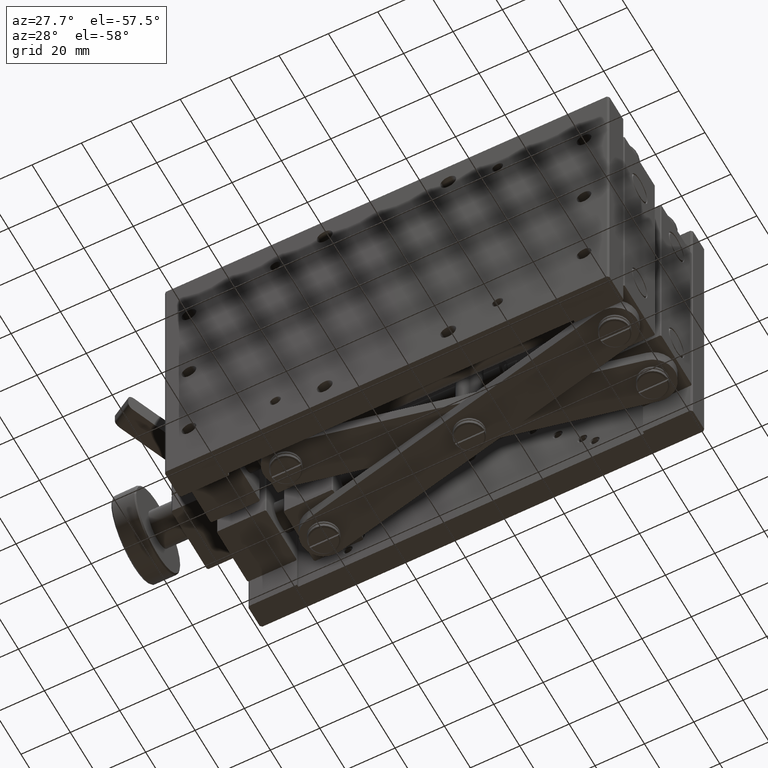
[diagram: clean part render]
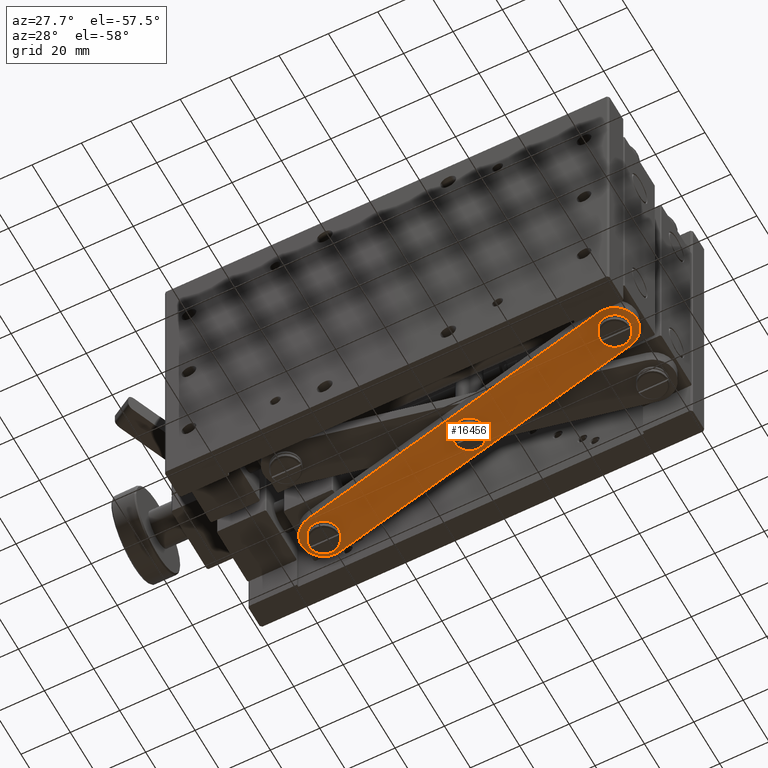
[diagram: same view with one face highlighted and labeled with its STEP entity id]
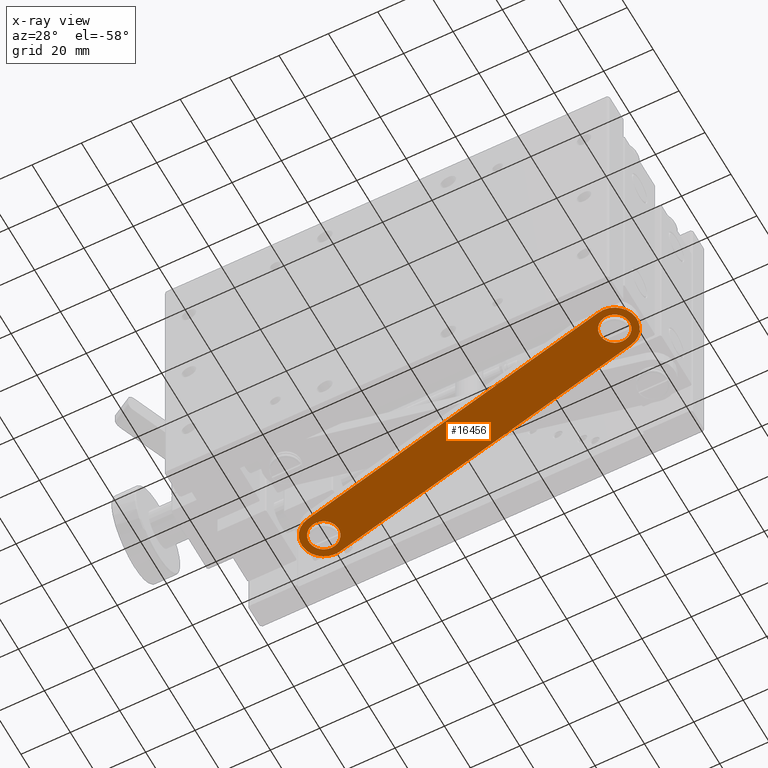
[diagram: x-ray of the same camera — body ghosted, the highlighted face saturated]
A machine part, auxiliary view. The second image highlights one B-rep face of the part: STEP entity #16456.
The next image is the same camera in x-ray: the body ghosted, the highlighted face saturated — about 0% of this face is hidden behind the body in this view.
In plain terms, the highlighted planar face has unit normal (0, 0, -1).
Its self-contained STEP definition (entity closure, byte-faithful):
#277 = VECTOR ( 'NONE', #7136, 1000.000000000000114 ) ;
#666 = CARTESIAN_POINT ( 'NONE',  ( 170.0999999999999943, 23.56999999999999673, -115.5000000000000000 ) ) ;
#755 = DIRECTION ( 'NONE',  ( 1.000000000000000000, 0.000000000000000000, 0.000000000000000000 ) ) ;
#774 = CIRCLE ( 'NONE', #10178, 9.000000000000001776 ) ;
#972 = AXIS2_PLACEMENT_3D ( 'NONE', #11038, #6046, #3366 ) ;
#1422 = DIRECTION ( 'NONE',  ( 0.000000000000000000, 1.284980352575409741E-16, 1.000000000000000000 ) ) ;
#1569 = CARTESIAN_POINT ( 'NONE',  ( 34.96901373786520395, 44.03959090511444430, -115.5000000000000000 ) ) ;
#1594 = DIRECTION ( 'NONE',  ( 0.000000000000000000, -1.000000000000000000, 0.000000000000000000 ) ) ;
#1640 = EDGE_LOOP ( 'NONE', ( #6274 ) ) ;
#1692 = VERTEX_POINT ( 'NONE', #5565 ) ;
#1792 = CARTESIAN_POINT ( 'NONE',  ( 172.0309862621348032, 32.36040909488554718, -115.5000000000000000 ) ) ;
#1934 = DIRECTION ( 'NONE',  ( 0.000000000000000000, 0.000000000000000000, 1.000000000000000000 ) ) ;
#2000 = FACE_BOUND ( 'NONE', #10005, .T. ) ;
#2164 = FACE_OUTER_BOUND ( 'NONE', #13042, .T. ) ;
#2262 = CARTESIAN_POINT ( 'NONE',  ( 36.89999999999999858, 46.83000000000001251, -115.5000000000000000 ) ) ;
#2283 = DIRECTION ( 'NONE',  ( 1.000000000000000000, 0.000000000000000000, 0.000000000000000000 ) ) ;
#2560 = CARTESIAN_POINT ( 'NONE',  ( 168.1690137378651855, 14.77959090511439832, -115.5000000000000000 ) ) ;
#3366 = DIRECTION ( 'NONE',  ( 0.000000000000000000, -1.000000000000000000, 0.000000000000000000 ) ) ;
#3562 = CARTESIAN_POINT ( 'NONE',  ( 36.89999999999999858, 52.83000000000000540, -115.5000000000000000 ) ) ;
#3669 = AXIS2_PLACEMENT_3D ( 'NONE', #13462, #1934, #755 ) ;
#3752 = ORIENTED_EDGE ( 'NONE', *, *, #9285, .F. ) ;
#4186 = ORIENTED_EDGE ( 'NONE', *, *, #13290, .F. ) ;
#4321 = ORIENTED_EDGE ( 'NONE', *, *, #7808, .T. ) ;
#4817 = EDGE_CURVE ( 'NONE', #13535, #16509, #13467, .T. ) ;
#4878 = VERTEX_POINT ( 'NONE', #9936 ) ;
#5430 = EDGE_CURVE ( 'NONE', #5677, #5677, #16378, .T. ) ;
#5565 = CARTESIAN_POINT ( 'NONE',  ( 170.0999999999999943, 17.56999999999999673, -115.5000000000000000 ) ) ;
#5677 = VERTEX_POINT ( 'NONE', #9540 ) ;
#6037 = DIRECTION ( 'NONE',  ( 0.000000000000000000, 0.000000000000000000, -1.000000000000000000 ) ) ;
#6046 = DIRECTION ( 'NONE',  ( 0.000000000000000000, 1.284980352575409741E-16, 1.000000000000000000 ) ) ;
#6274 = ORIENTED_EDGE ( 'NONE', *, *, #5430, .T. ) ;
#6461 = VECTOR ( 'NONE', #8249, 1000.000000000000114 ) ;
#7052 = FACE_BOUND ( 'NONE', #1640, .T. ) ;
#7136 = DIRECTION ( 'NONE',  ( 0.9767121216539511597, -0.2145540291260860100, 0.000000000000000000 ) ) ;
#7808 = EDGE_CURVE ( 'NONE', #1692, #1692, #11087, .T. ) ;
#7839 = AXIS2_PLACEMENT_3D ( 'NONE', #15476, #1422, #1594 ) ;
#8249 = DIRECTION ( 'NONE',  ( -0.9767121216539511597, 0.2145540291260860100, 0.000000000000000000 ) ) ;
#8834 = AXIS2_PLACEMENT_3D ( 'NONE', #12753, #8893, #9049 ) ;
#8893 = DIRECTION ( 'NONE',  ( 0.000000000000000000, 0.000000000000000000, 1.000000000000000000 ) ) ;
#9049 = DIRECTION ( 'NONE',  ( 1.000000000000000000, 0.000000000000000000, 0.000000000000000000 ) ) ;
#9266 = EDGE_CURVE ( 'NONE', #12695, #12695, #13605, .T. ) ;
#9285 = EDGE_CURVE ( 'NONE', #4878, #13535, #14140, .T. ) ;
#9540 = CARTESIAN_POINT ( 'NONE',  ( 105.5000000000000142, 38.19999999999999574, -115.5000000000000000 ) ) ;
#9755 = FACE_BOUND ( 'NONE', #14328, .T. ) ;
#9831 = CARTESIAN_POINT ( 'NONE',  ( 38.83098626213480031, 61.62040909488560203, -115.5000000000000000 ) ) ;
#9936 = CARTESIAN_POINT ( 'NONE',  ( 168.1690137378651855, 14.77959090511439655, -115.5000000000000000 ) ) ;
#10005 = EDGE_LOOP ( 'NONE', ( #4321 ) ) ;
#10178 = AXIS2_PLACEMENT_3D ( 'NONE', #3562, #13819, #2283 ) ;
#10800 = AXIS2_PLACEMENT_3D ( 'NONE', #666, #6037, #14886 ) ;
#11038 = CARTESIAN_POINT ( 'NONE',  ( 36.89999999999999858, 52.83000000000000540, -115.5000000000000000 ) ) ;
#11087 = CIRCLE ( 'NONE', #7839, 6.000000000000001776 ) ;
#12186 = PLANE ( 'NONE',  #10800 ) ;
#12447 = EDGE_CURVE ( 'NONE', #16509, #14891, #774, .T. ) ;
#12695 = VERTEX_POINT ( 'NONE', #2262 ) ;
#12753 = CARTESIAN_POINT ( 'NONE',  ( 103.5000000000000142, 38.19999999999999574, -115.5000000000000000 ) ) ;
#13042 = EDGE_LOOP ( 'NONE', ( #4186, #15183, #14106, #3752 ) ) ;
#13290 = EDGE_CURVE ( 'NONE', #14891, #4878, #15359, .T. ) ;
#13462 = CARTESIAN_POINT ( 'NONE',  ( 170.0999999999999943, 23.56999999999999673, -115.5000000000000000 ) ) ;
#13467 = LINE ( 'NONE', #14653, #6461 ) ;
#13535 = VERTEX_POINT ( 'NONE', #1792 ) ;
#13605 = CIRCLE ( 'NONE', #972, 5.999999999999998224 ) ;
#13819 = DIRECTION ( 'NONE',  ( 0.000000000000000000, 0.000000000000000000, 1.000000000000000000 ) ) ;
#14106 = ORIENTED_EDGE ( 'NONE', *, *, #4817, .F. ) ;
#14140 = CIRCLE ( 'NONE', #3669, 9.000000000000007105 ) ;
#14328 = EDGE_LOOP ( 'NONE', ( #16441 ) ) ;
#14653 = CARTESIAN_POINT ( 'NONE',  ( 38.83098626213480031, 61.62040909488560203, -115.5000000000000000 ) ) ;
#14886 = DIRECTION ( 'NONE',  ( -1.000000000000000000, 0.000000000000000000, -0.000000000000000000 ) ) ;
#14891 = VERTEX_POINT ( 'NONE', #1569 ) ;
#15183 = ORIENTED_EDGE ( 'NONE', *, *, #12447, .F. ) ;
#15359 = LINE ( 'NONE', #2560, #277 ) ;
#15476 = CARTESIAN_POINT ( 'NONE',  ( 170.0999999999999943, 23.56999999999999673, -115.5000000000000000 ) ) ;
#16378 = CIRCLE ( 'NONE', #8834, 2.000000000000001776 ) ;
#16441 = ORIENTED_EDGE ( 'NONE', *, *, #9266, .T. ) ;
#16456 = ADVANCED_FACE ( 'NONE', ( #2164, #9755, #2000, #7052 ), #12186, .T. ) ;
#16509 = VERTEX_POINT ( 'NONE', #9831 ) ;